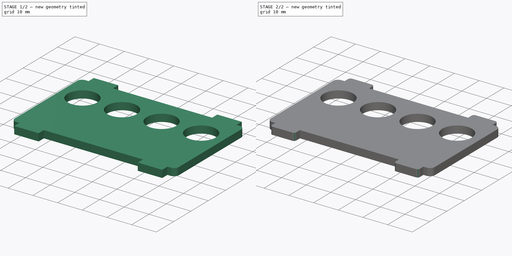
[diagram: build sequence overview — one tinted view per stage of 2, left to right]
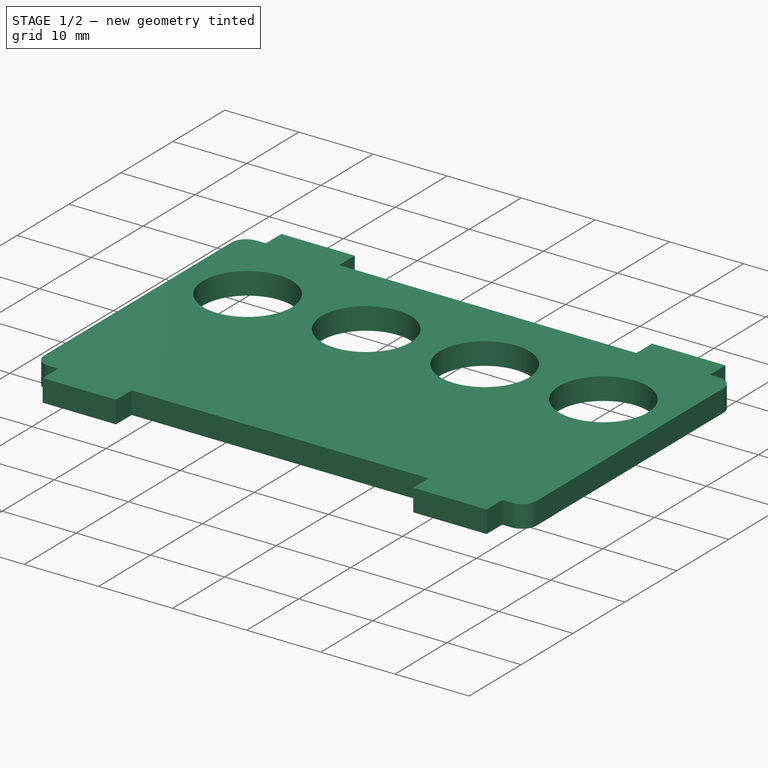
[diagram: stage 1 of 2 — iso view after this stage's code; geometry added in this stage tinted green]
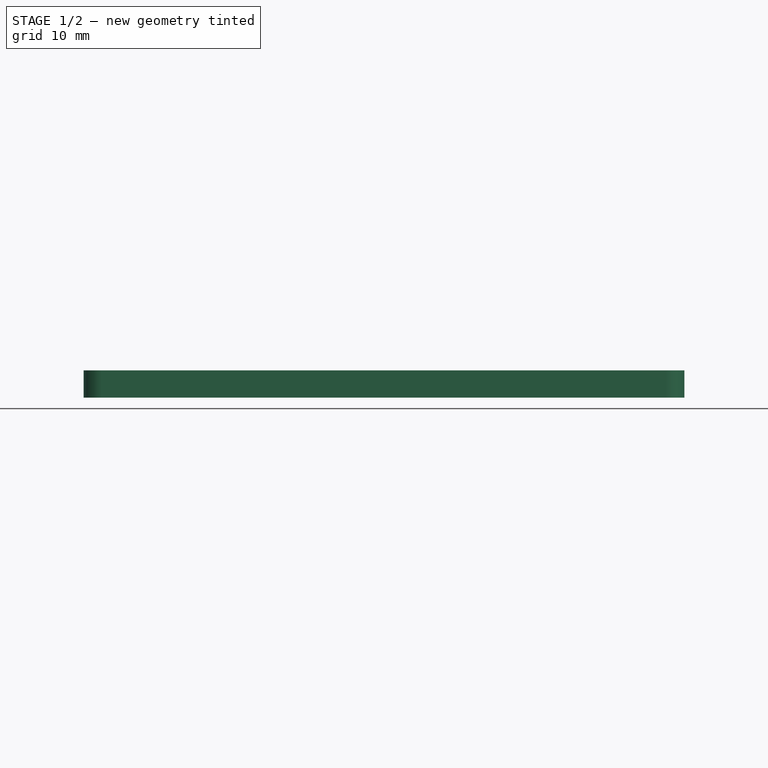
[diagram: stage 1 of 2 — front view after this stage's code; geometry added in this stage tinted green]
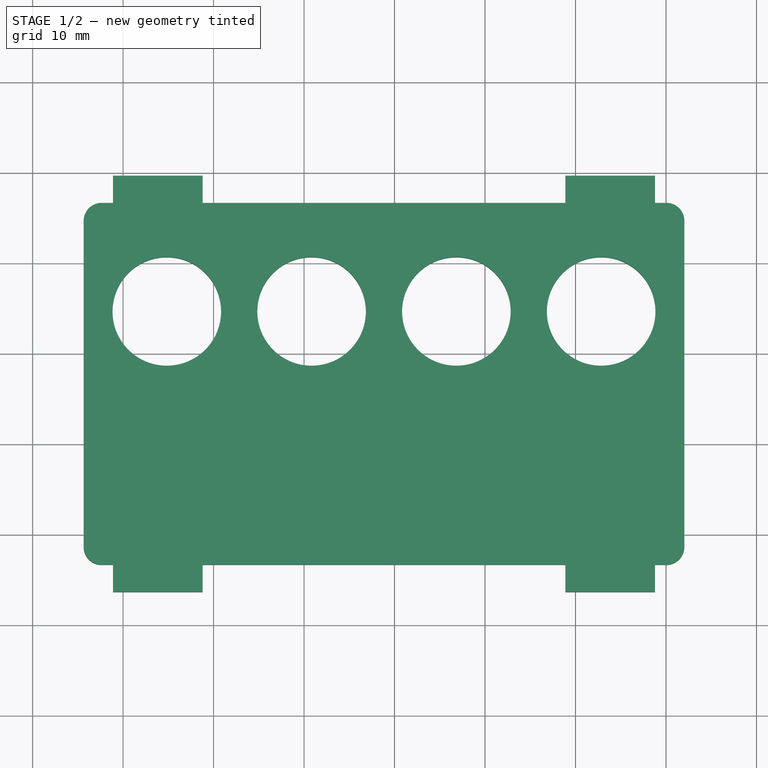
[diagram: stage 1 of 2 — top view after this stage's code; geometry added in this stage tinted green]
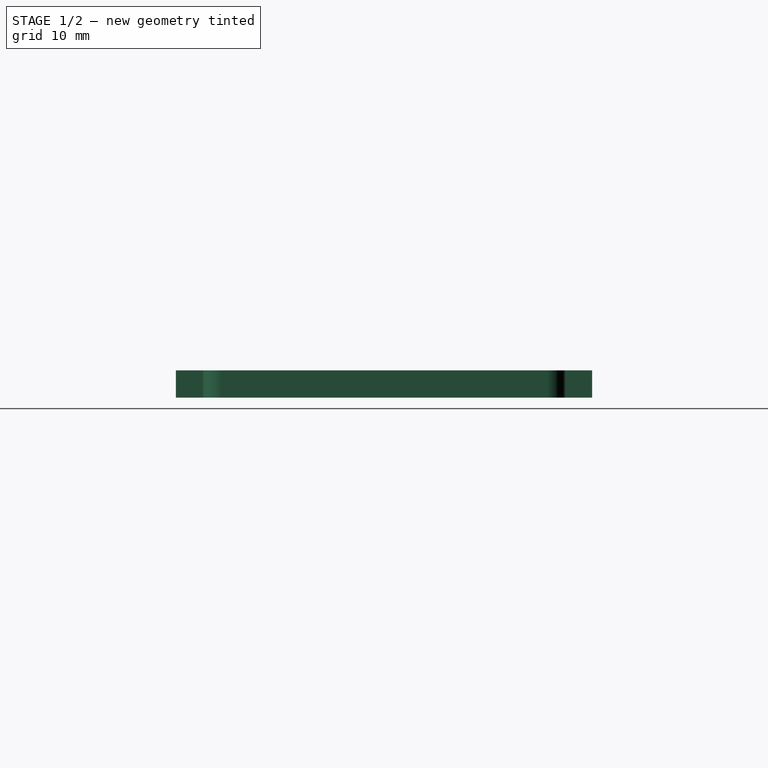
[diagram: stage 1 of 2 — right view after this stage's code; geometry added in this stage tinted green]
FCSTD DOCUMENT
Label: weather_kit_side_left_buttons
objects: PartDesign::Fillet×2, Sketcher::SketchObject×1, PartDesign::Pad×1, Drawing::FeatureViewPart×1, Drawing::FeaturePage×1
note: 5 computed .brp shape members not serialized (recipe doc carries the construction recipe); baked Part::Feature solids carry a one-line shape summary decoded from their .brp

FEATURE [Sketcher::SketchObject] Sketch
  sketch-geometry (24):
    g0: LineSegment StartX=12.0354 StartY=26.6676 StartZ=0 EndX=12.0354 EndY=-13.3324 EndZ=0
    g1: LineSegment StartX=-54.3646 StartY=-13.3324 StartZ=0 EndX=-54.3646 EndY=26.6676 EndZ=0
    g2: LineSegment StartX=-51.1146 StartY=29.6676 StartZ=0 EndX=-41.2146 EndY=29.6676 EndZ=0
    g3: LineSegment StartX=-41.2146 StartY=29.6676 StartZ=0 EndX=-41.2146 EndY=26.6676 EndZ=0
    g4: LineSegment StartX=-51.1146 StartY=26.6676 StartZ=0 EndX=-51.1146 EndY=29.6676 EndZ=0
    g5: LineSegment StartX=-1.11463 StartY=29.6676 StartZ=0 EndX=8.78537 EndY=29.6676 EndZ=0
    g6: LineSegment StartX=8.78537 StartY=29.6676 StartZ=0 EndX=8.78537 EndY=26.6676 EndZ=0
    g7: LineSegment StartX=-1.11463 StartY=26.6676 StartZ=0 EndX=-1.11463 EndY=29.6676 EndZ=0
    g8: LineSegment StartX=8.78537 StartY=-13.3324 StartZ=0 EndX=8.78537 EndY=-16.3324 EndZ=0
    g9: LineSegment StartX=8.78537 StartY=-16.3324 StartZ=0 EndX=-1.11463 EndY=-16.3324 EndZ=0
    g10: LineSegment StartX=-1.11463 StartY=-16.3324 StartZ=0 EndX=-1.11463 EndY=-13.3324 EndZ=0
    g11: LineSegment StartX=-41.2146 StartY=-13.3324 StartZ=0 EndX=-41.2146 EndY=-16.3324 EndZ=0
    g12: LineSegment StartX=-41.2146 StartY=-16.3324 StartZ=0 EndX=-51.1146 EndY=-16.3324 EndZ=0
    g13: LineSegment StartX=-51.1146 StartY=-16.3324 StartZ=0 EndX=-51.1146 EndY=-13.3324 EndZ=0
    g14: LineSegment StartX=-51.1146 StartY=-13.3324 StartZ=0 EndX=-54.3646 EndY=-13.3324 EndZ=0
    g15: LineSegment StartX=-1.11463 StartY=-13.3324 StartZ=0 EndX=-41.2146 EndY=-13.3324 EndZ=0
    g16: LineSegment StartX=8.78537 StartY=-13.3324 StartZ=0 EndX=12.0354 EndY=-13.3324 EndZ=0
    g17: LineSegment StartX=8.78537 StartY=26.6676 StartZ=0 EndX=12.0354 EndY=26.6676 EndZ=0
    g18: LineSegment StartX=-41.2146 StartY=26.6676 StartZ=0 EndX=-1.11463 EndY=26.6676 EndZ=0
    g19: LineSegment StartX=-51.1146 StartY=26.6676 StartZ=0 EndX=-54.3646 EndY=26.6676 EndZ=0
    g20: Circle CenterX=-45.1677 CenterY=14.6676 CenterZ=0 NormalX=0 NormalY=0 NormalZ=1 Radius=6
    g21: Circle CenterX=-29.1677 CenterY=14.6676 CenterZ=0 NormalX=0 NormalY=0 NormalZ=1 Radius=6
    g22: Circle CenterX=-13.1677 CenterY=14.6676 CenterZ=0 NormalX=0 NormalY=0 NormalZ=1 Radius=6
    g23: Circle CenterX=2.83233 CenterY=14.6676 CenterZ=0 NormalX=0 NormalY=0 NormalZ=1 Radius=6
  constraints (70):
    c: Vertical(g0)
    c: Vertical(g1)
    c: DistanceY(g0) = -40
    c: Coincident(g2,g3)
    c: Coincident(g4,g2)
    c: Horizontal(g2)
    c: Vertical(g3)
    c: Vertical(g4)
    c: Coincident(g5,g6)
    c: Coincident(g7,g5)
    c: Horizontal(g5)
    c: Vertical(g6)
    c: Vertical(g7)
    c: Coincident(g8,g9)
    c: Coincident(g9,g10)
    c: Horizontal(g9)
    c: Vertical(g8)
    c: Vertical(g10)
    c: Coincident(g11,g12)
    c: Coincident(g12,g13)
    c: Horizontal(g12)
    c: Vertical(g11)
    c: Vertical(g13)
    c: DistanceY(g11) = -3
    c: DistanceY(g8) = -3
    c: DistanceY(g6) = -3
    c: DistanceY(g3) = -3
    c: DistanceX(g2) = 9.9
    c: DistanceX(g5) = 9.9
    c: DistanceX(g12) = -9.9
    c: DistanceX(g9) = -9.9
    c: DistanceY(g10,g0) = 0
    c: DistanceY(g13,g1) = 0
    c: DistanceY(g1,g4) = 0
    c: DistanceY(g6,g0) = 0
    c: DistanceX(g6,g0) = 3.25
    c: DistanceX(g4,g1) = -3.25
    c: DistanceX(g13,g1) = -3.25
    c: DistanceX(g0,g8) = -3.25
    c: Coincident(g14,g13)
    c: Coincident(g14,g1)
    c: Coincident(g15,g10)
    c: Coincident(g15,g11)
    c: Horizontal(g15)
    c: Coincident(g16,g8)
    c: Coincident(g16,g0)
    c: Horizontal(g16)
    c: Coincident(g17,g6)
    c: Coincident(g17,g0)
    c: Coincident(g18,g3)
    c: Coincident(g18,g7)
    c: Horizontal(g18)
    c: Coincident(g19,g4)
    c: Coincident(g19,g1)
    c: DistanceX(g15) = -40.1
    c: Radius(g20) = 6
    c: Radius(g23) = 6
    c: Radius(g22) = 6
    c: Radius(g21) = 6
    c: DistanceY(g20,g21) = 0
    c: DistanceY(g22,g21) = 0
    c: DistanceY(g22,g23) = 0
    c: DistanceX(g20,g21) = 16
    c: DistanceX(g21,g22) = 16
    c: DistanceX(g22,g23) = 16
    c: DistanceX(g21,g1) = -25.197
    c: DistanceY(g1,g20) = -12
    c: DistanceY(g4,g2) = 3
    c: DistanceY(g7,g5) = 3
    c: DistanceY(g12,g13) = 3
FEATURE [PartDesign::Pad] Pad
  Length = 3
  Length2 = 100
  Sketch = -> Sketch
  Type = 0
FEATURE [PartDesign::Fillet] Fillet
  Base = -> Pad [Edge2,Edge56,Edge29,Edge26]
  Radius = 2
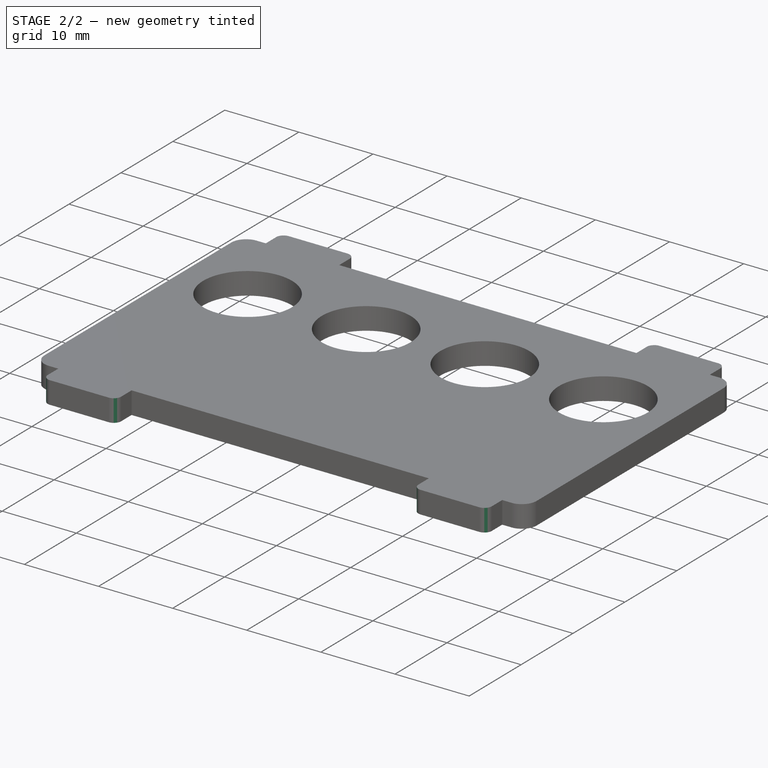
[diagram: stage 2 of 2 — iso view after this stage's code; geometry added in this stage tinted green]
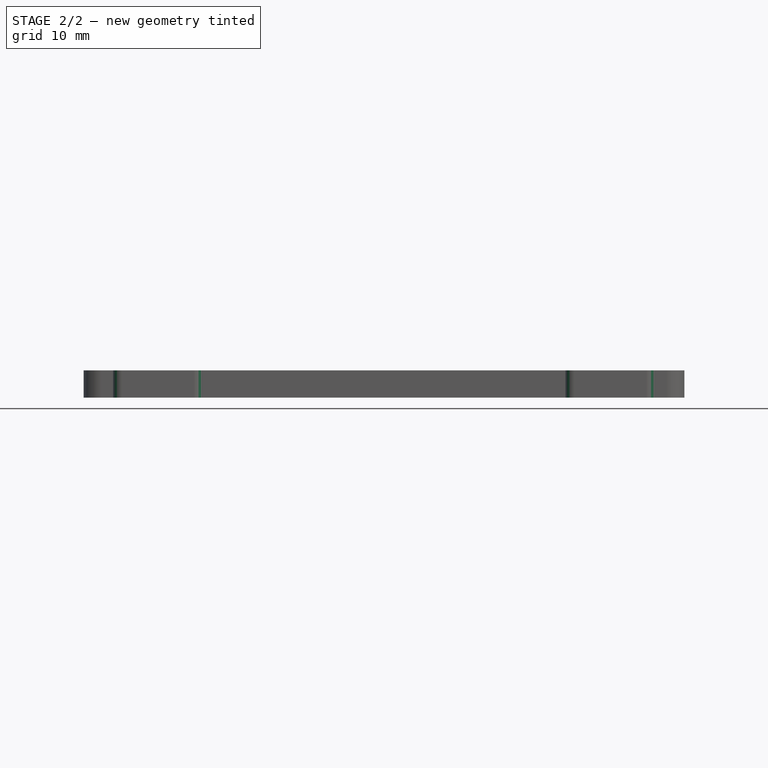
[diagram: stage 2 of 2 — front view after this stage's code; geometry added in this stage tinted green]
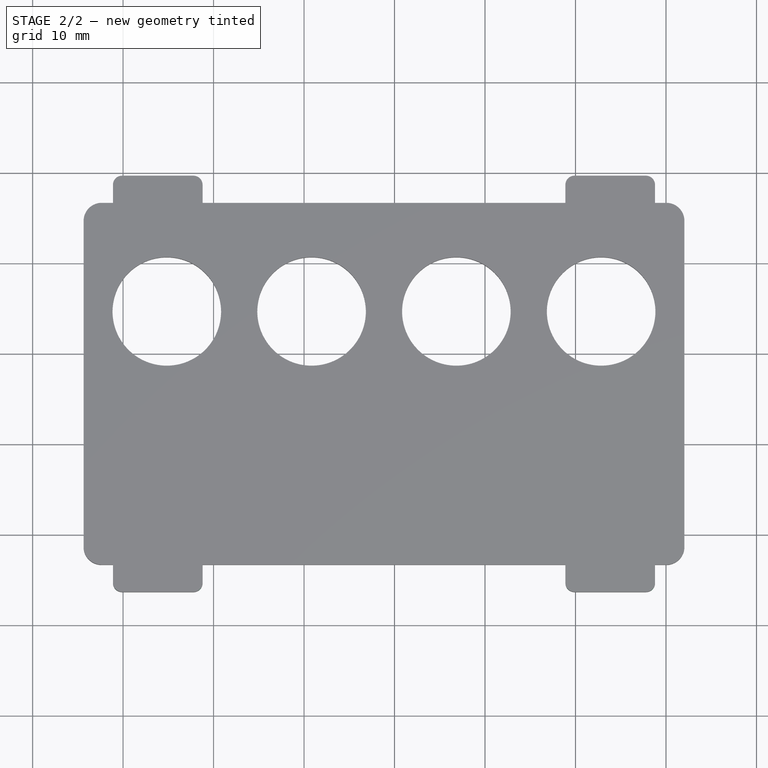
[diagram: stage 2 of 2 — top view after this stage's code; geometry added in this stage tinted green]
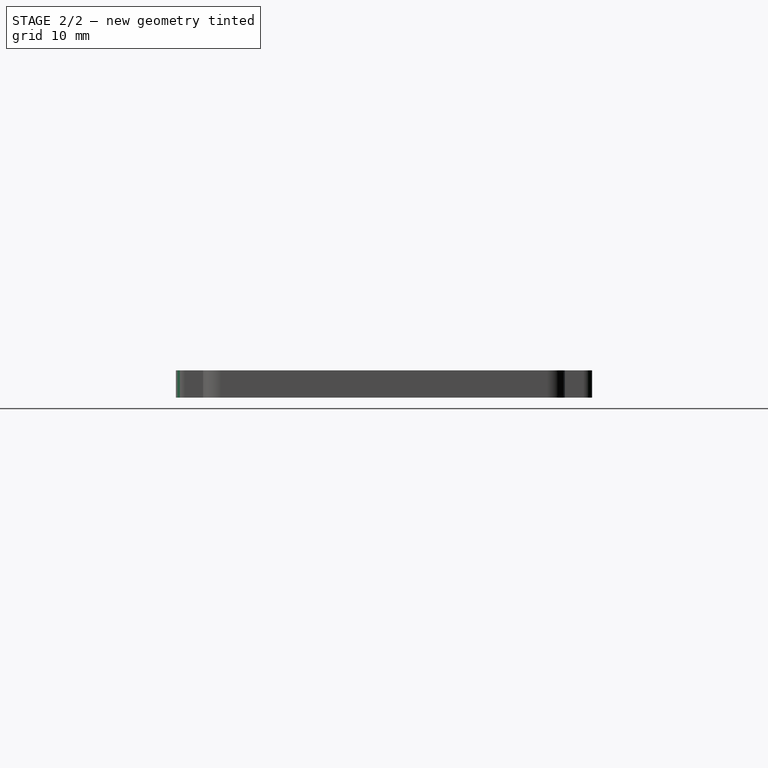
[diagram: stage 2 of 2 — right view after this stage's code; geometry added in this stage tinted green]
FEATURE [PartDesign::Fillet] Fillet001
  Base = -> Fillet [Edge70,Edge68,Edge62,Edge34,Edge67,Edge69,Edge75,Edge77]
  Radius = 1
FEATURE [Drawing::FeatureViewPart] View
  Direction = (0,0,1)
  LineWidth = 0.35
  Rotation = 0
  ShowHiddenLines = false
  ShowSmoothLines = false
  Source = -> Fillet001
  Tolerance = 0.05
  ViewResult = <blob: 2341 chars omitted>
  X = 200
  Y = 100
FEATURE [Drawing::FeaturePage] Page
  EditableTexts = AUTHOR NAME | CREATION DATE | SUPERVISOR NAME | CHECK DATE | SCALE | WEIGHT | NUMBER | SHEET | TITLE | SUBTITLE
  Group = -> [View]
  Template = <path>
note: 1 file-system path scrubbed to <path> (originals preserved in the JSON sidecar)
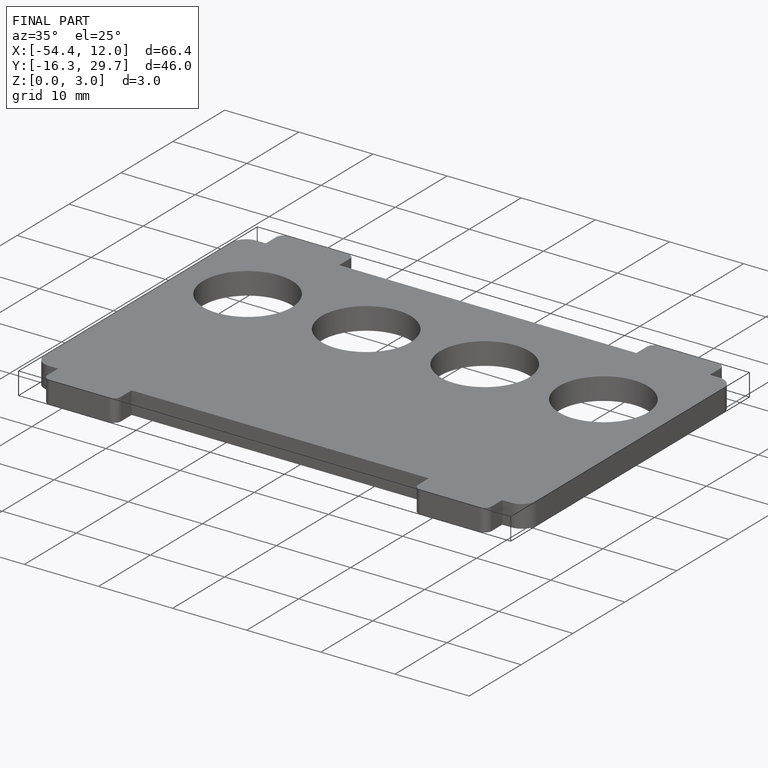
[diagram: finished part — iso view with bounding-box wireframe]
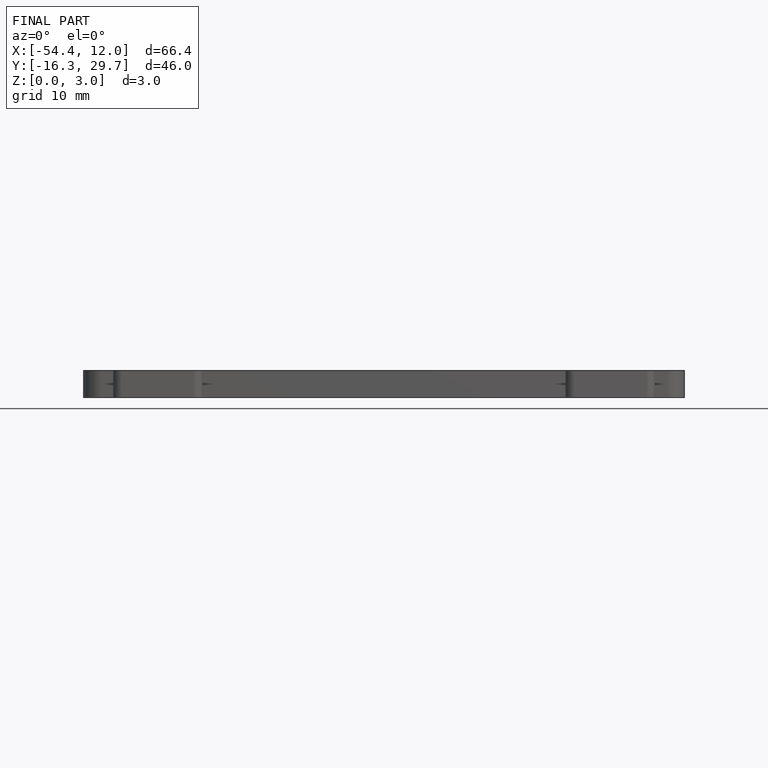
[diagram: finished part — front view with bounding-box wireframe]
